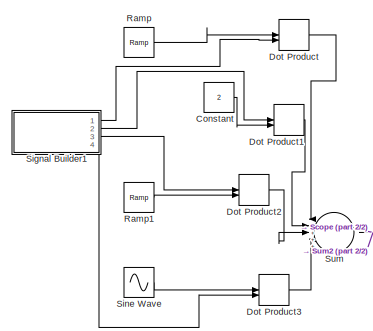
[diagram: root canvas - part 1/2, top left region]
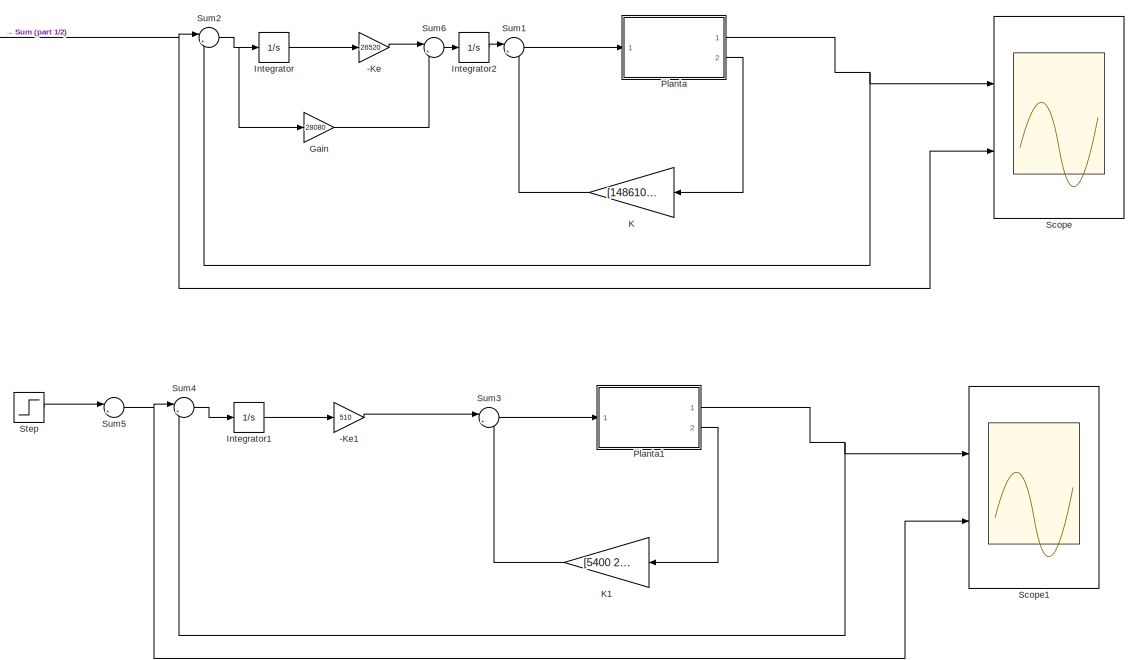
[diagram: root canvas - part 2/2, center side, full height]
MODEL slx_ef1ae05b0e9f
KIND model
CONFIG AbsTol = auto
CONFIG EnableMultiTasking = off
CONFIG FixedStep = auto
CONFIG MaxStep = auto
CONFIG MinStep = auto
CONFIG RelTol = 1e-3
CONFIG SampleTimeConstraint = Unconstrained
CONFIG SolverName = VariableStepAuto
CONFIG StartTime = 0.0
CONFIG StopTime = 50
BLOCK [Gain] -Ke
  Gain = 26520
  Multiplication = Matrix(K*u)
BLOCK [Gain] -Ke1
  Gain = 510
  Multiplication = Matrix(K*u)
BLOCK [Constant] Constant
  Value = 2
BLOCK [DotProduct] Dot Product
  OutDataTypeStr = Inherit: Inherit via internal rule
BLOCK [DotProduct] Dot Product1
  OutDataTypeStr = Inherit: Inherit via internal rule
BLOCK [DotProduct] Dot Product2
  OutDataTypeStr = Inherit: Inherit via internal rule
BLOCK [DotProduct] Dot Product3
  OutDataTypeStr = Inherit: Inherit via internal rule
BLOCK [Gain] Gain
  Gain = 28080
  Multiplication = Matrix(K*u)
BLOCK [Integrator] Integrator
  Ports = [1, 1]
BLOCK [Integrator] Integrator1
  Ports = [1, 1]
BLOCK [Integrator] Integrator2
  Ports = [1, 1]
BLOCK [Gain] K
  Gain = [148610 8110 150]
  Multiplication = Matrix(K*u)
BLOCK [Gain] K1
  Gain = [5400 2753.8 93]
  Multiplication = Matrix(K*u)
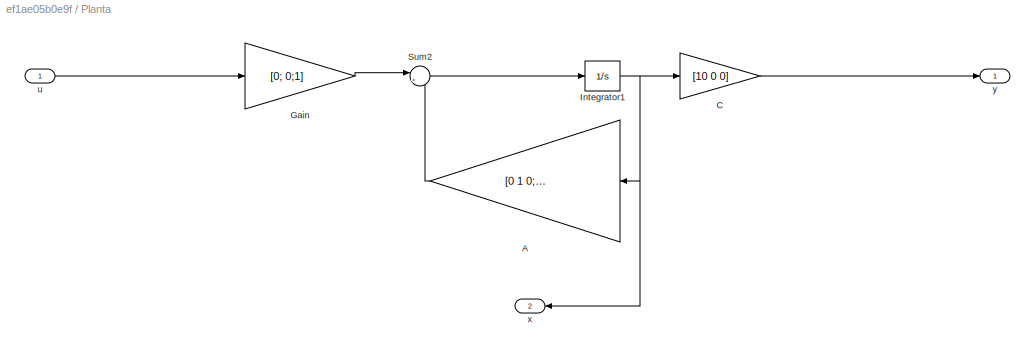
BLOCK [SubSystem] Planta
  Ports = [1, 2]
  RequestExecContextInheritance = off
BLOCK [Gain] Planta/A
  Gain = [0 1 0; 0 0 1; 98 -0.2 -10]
  Multiplication = Matrix(K*u)
BLOCK [Gain] Planta/C
  Gain = [10 0 0]
  Multiplication = Matrix(K*u)
BLOCK [Gain] Planta/Gain
  Gain = [0; 0;1]
  Multiplication = Matrix(K*u)
BLOCK [Integrator] Planta/Integrator1
  Ports = [1, 1]
BLOCK [Sum] Planta/Sum2
  Inputs = |++
  Ports = [2, 1]
BLOCK [Inport] Planta/u
BLOCK [Outport] Planta/x
  Port = 2
BLOCK [Outport] Planta/y
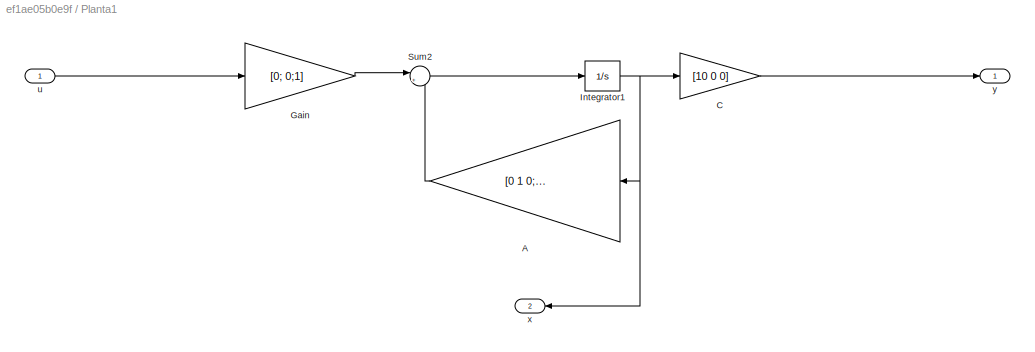
BLOCK [SubSystem] Planta1
  Ports = [1, 2]
  RequestExecContextInheritance = off
BLOCK [Gain] Planta1/A
  Gain = [0 1 0; 0 0 1; 98 -0.2 -10]
  Multiplication = Matrix(K*u)
BLOCK [Gain] Planta1/C
  Gain = [10 0 0]
  Multiplication = Matrix(K*u)
BLOCK [Gain] Planta1/Gain
  Gain = [0; 0;1]
  Multiplication = Matrix(K*u)
BLOCK [Integrator] Planta1/Integrator1
  Ports = [1, 1]
BLOCK [Sum] Planta1/Sum2
  Inputs = |++
  Ports = [2, 1]
BLOCK [Inport] Planta1/u
BLOCK [Outport] Planta1/x
  Port = 2
BLOCK [Outport] Planta1/y
BLOCK [Reference] Ramp  REF=simulink/Sources/Ramp
  Ports = [0, 1]
  SourceBlock = simulink/Sources/Ramp
  SourceProductBaseCode = SL
  SourceType = Ramp
BLOCK [Reference] Ramp1  REF=simulink/Sources/Ramp
  Ports = [0, 1]
  SourceBlock = simulink/Sources/Ramp
  SourceProductBaseCode = SL
  SourceType = Ramp
BLOCK [Scope] Scope
  Floating = off
  NumInputPorts = 2
  Ports = [2]
  ScopeSpecificationString = Simulink.scopes.TimeScopeBlockCfg('CurrentConfiguration', extmgr.ConfigurationSet(extmgr.Configuration('Core','General UI',true),extmgr.Configuration('Core','Source UI',true),extmgr.Configuration('Sources','WiredSimulink',true),extmgr.Configuration('Visuals','Time Domain',true,'SerializedDisplays',{struct('MinYLimReal','-1.37605','MaxYLimReal','2.39','YLabelReal','','MinYLimMag','0.00000','MaxYLim...<+1396ch>
BLOCK [Scope] Scope1
  Floating = off
  NumInputPorts = 2
  Ports = [2]
  ScopeSpecificationString = Simulink.scopes.TimeScopeBlockCfg('CurrentConfiguration', extmgr.ConfigurationSet(extmgr.Configuration('Core','General UI',true),extmgr.Configuration('Core','Source UI',true),extmgr.Configuration('Sources','WiredSimulink',true,'DataLoggingVariableName','ScopeData1'),extmgr.Configuration('Visuals','Time Domain',true,'SerializedDisplays',{struct('MinYLimReal','-1.37605','MaxYLimReal','2.39','YLabelR...<+1437ch>
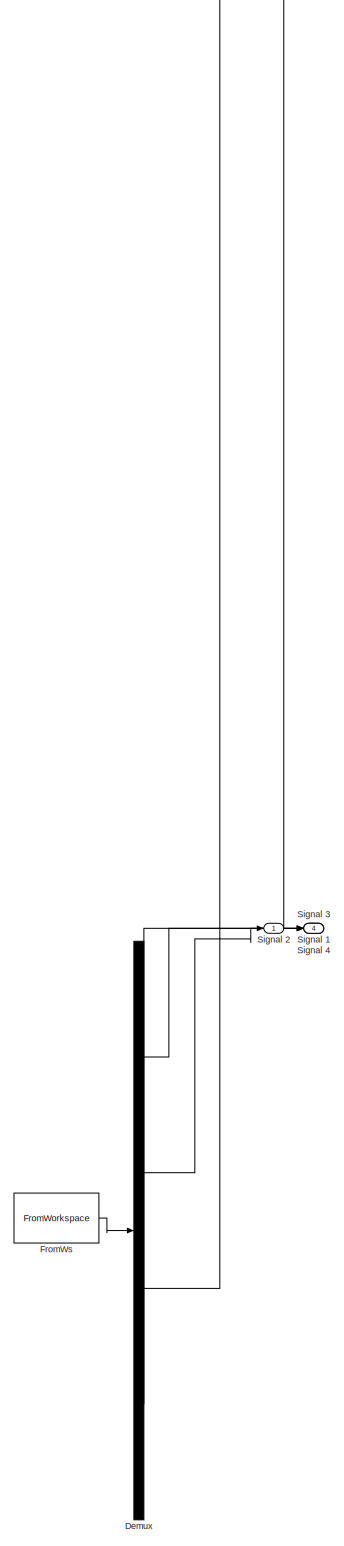
[diagram: Signal Builder1 - part 1/1, full width, bottom band]
BLOCK [SubSystem] Signal Builder1
  ClipboardFcn = sigbuilder_block('clipboard');
  CloseFcn = sigbuilder_block('close');
  ContinueFcn = sigbuilder_block('continue');
  CopyFcn = sigbuilder_block('copy');
  DeleteFcn = sigbuilder_block('delete');
  LoadFcn = sigbuilder_block('load',[437.6 199.2 550.4 400 ]);
  MaskHideContents = on
  ModelCloseFcn = sigbuilder_block('modelClose');
  NameChangeFcn = sigbuilder_block('namechange');
  OpenFcn = sigbuilder_block('open',[437.6 199.2 550.4 400 ]);
  PauseFcn = sigbuilder_block('pause');
  Ports = [0, 4]
  PreSaveFcn = sigbuilder_block('preSave');
  RequestExecContextInheritance = off
  StartFcn = sigbuilder_block('start');
  StopFcn = sigbuilder_block('stop');
  Tag = STV Subsys
BLOCK [Demux] Signal Builder1/Demux
  DisplayOption = none
  Ports = [1, 4]
  Tag = STV Demux
BLOCK [FromWorkspace] Signal Builder1/FromWs
  Tag = STV FromWs
  VariableName = tuvar
BLOCK [Outport] Signal Builder1/Signal 1
  Port = 2
  Tag = STV Outport
BLOCK [Outport] Signal Builder1/Signal 2
  Tag = STV Outport
BLOCK [Outport] Signal Builder1/Signal 3
  Port = 3
  Tag = STV Outport
BLOCK [Outport] Signal Builder1/Signal 4
  Port = 4
  Tag = STV Outport
BLOCK [Sin] Sine Wave
  Amplitude = -1
  Frequency = pi/10
  Phase = -25*pi/10
  Ports = [0, 1]
  SampleTime = 0
BLOCK [Step] Step
  SampleTime = 0
BLOCK [Sum] Sum
  Inputs = |++++-
  Ports = [5, 1]
BLOCK [Sum] Sum1
  Inputs = |+-
  Ports = [2, 1]
BLOCK [Sum] Sum2
  Inputs = |+-
  Ports = [2, 1]
BLOCK [Sum] Sum3
  Inputs = |+-
  Ports = [2, 1]
BLOCK [Sum] Sum4
  Inputs = |+-
  Ports = [2, 1]
BLOCK [Sum] Sum5
  Inputs = |++
  Ports = [2, 1]
BLOCK [Sum] Sum6
  Inputs = |++
  Ports = [2, 1]
LINE -Ke1:1 -> Sum3:1
LINE -Ke:1 -> Sum6:1
LINE Constant:1 -> Dot Product1:2
LINE Dot Product1:1 -> Sum:2
LINE Dot Product2:1 -> Sum:3
LINE Dot Product3:1 -> Sum:4
LINE Dot Product:1 -> Sum:1
LINE Gain:1 -> Sum6:2
LINE Integrator1:1 -> -Ke1:1
LINE Integrator2:1 -> Sum1:1
LINE Integrator:1 -> -Ke:1
LINE K1:1 -> Sum3:2
LINE K:1 -> Sum1:2
LINE Planta/A:1 -> Planta/Sum2:2
LINE Planta/C:1 -> Planta/y:1
LINE Planta/Gain:1 -> Planta/Sum2:1
NET Planta/Integrator1:1 -> Planta/A:1, Planta/C:1, Planta/x:1
LINE Planta/Sum2:1 -> Planta/Integrator1:1
LINE Planta/u:1 -> Planta/Gain:1
LINE Planta1/A:1 -> Planta1/Sum2:2
LINE Planta1/C:1 -> Planta1/y:1
LINE Planta1/Gain:1 -> Planta1/Sum2:1
NET Planta1/Integrator1:1 -> Planta1/A:1, Planta1/C:1, Planta1/x:1
LINE Planta1/Sum2:1 -> Planta1/Integrator1:1
LINE Planta1/u:1 -> Planta1/Gain:1
NET Planta1:1 -> Scope1:1, Sum4:2
LINE Planta1:2 -> K1:1
NET Planta:1 -> Scope:1, Sum2:2
LINE Planta:2 -> K:1
LINE Ramp1:1 -> Dot Product2:2
LINE Ramp:1 -> Dot Product:1
LINE Signal Builder1:1 -> Dot Product:2
LINE Signal Builder1:2 -> Dot Product1:1
LINE Signal Builder1:3 -> Dot Product2:1
LINE Signal Builder1:4 -> Dot Product3:2
LINE Sine Wave:1 -> Dot Product3:1
LINE Step:1 -> Sum5:1
LINE Sum1:1 -> Planta:1
NET Sum2:1 -> Gain:1, Integrator:1
LINE Sum3:1 -> Planta1:1
LINE Sum4:1 -> Integrator1:1
NET Sum5:1 -> Scope1:2, Sum4:1
LINE Sum6:1 -> Integrator2:1
NET Sum:1 -> Scope:2, Sum2:1
note: NET lines group one-source signal fan-out (src -> all destinations, sorted); 1:1 wires keep LINE
